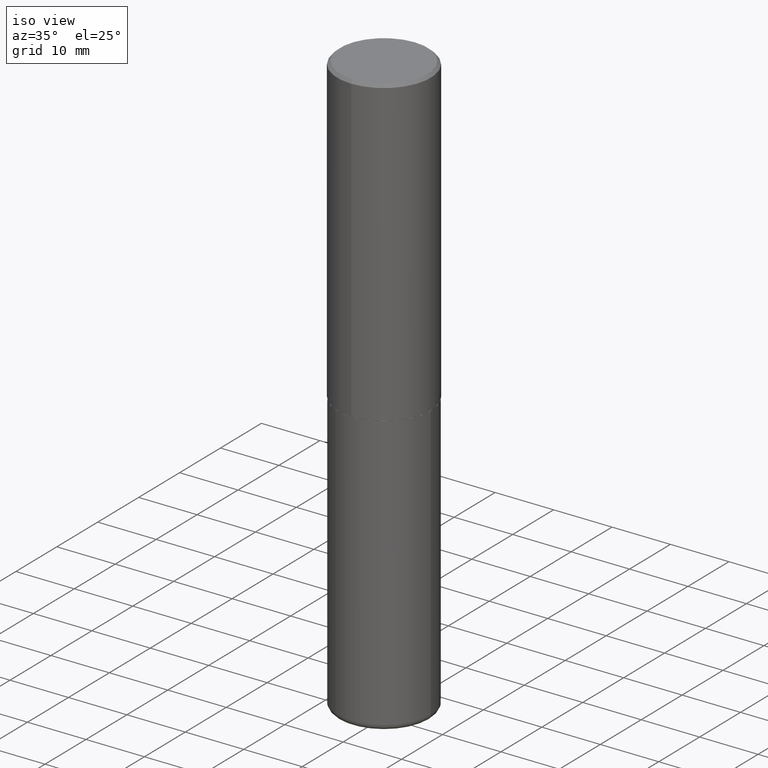
[diagram: clean part render]
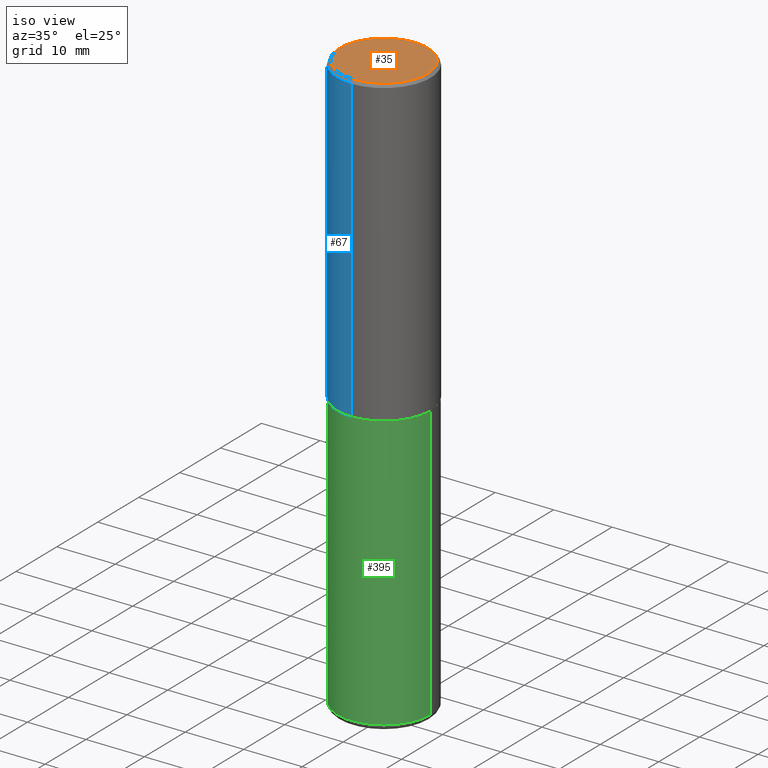
[diagram: same view with three faces highlighted in distinct colors, each labeled with its STEP entity id]
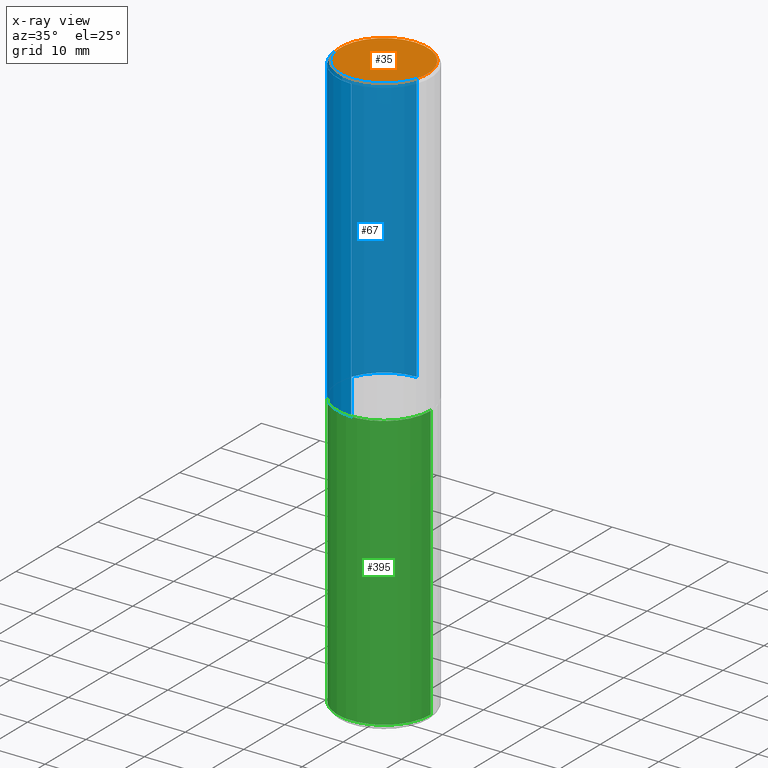
[diagram: x-ray of the same camera — body ghosted, the three highlighted faces saturated]
A machine part, iso view with three faces highlighted in distinct colors.
The next image is the same camera in x-ray (body ghosted, the three faces saturated) — at least one of them is partly hidden behind the body in this view.
Their STEP definitions:

[orange] entity #35 — the highlighted planar face has unit normal (0, -0, -1).
#6 = CARTESIAN_POINT ( 'NONE',  ( 2.059624841783566430E-15, 0.2949500000000003230, -1.121269247573966471E-15 ) ) ;
#7 = CARTESIAN_POINT ( 'NONE',  ( 2.129454468560428545E-15, 0.2949500000000003230, -1.213358457966104521E-15 ) ) ;
#35 = ADVANCED_FACE ( 'NONE', ( #293 ), #222, .F. ) ;
#66 = DIRECTION ( 'NONE',  ( 6.982962677686265922E-15, 1.000000000000000000, -3.489337301853966019E-15 ) ) ;
#76 = AXIS2_PLACEMENT_3D ( 'NONE', #6, #126, #66 ) ;
#92 = DIRECTION ( 'NONE',  ( -2.446965979212638438E-29, 3.489337301853966019E-15, 1.000000000000000000 ) ) ;
#106 = VERTEX_POINT ( 'NONE', #338 ) ;
#113 = CARTESIAN_POINT ( 'NONE',  ( 4.506783297642337076E-45, -6.426606338391306016E-31, -1.841784207842761497E-16 ) ) ;
#115 = AXIS2_PLACEMENT_3D ( 'NONE', #113, #358, #288 ) ;
#118 = ORIENTED_EDGE ( 'NONE', *, *, #171, .T. ) ;
#126 = DIRECTION ( 'NONE',  ( 2.446965979212638158E-29, -3.489337301853966019E-15, -1.000000000000000000 ) ) ;
#129 = AXIS2_PLACEMENT_3D ( 'NONE', #382, #92, #344 ) ;
#146 = ORIENTED_EDGE ( 'NONE', *, *, #366, .T. ) ;
#171 = EDGE_CURVE ( 'NONE', #106, #325, #193, .T. ) ;
#193 = CIRCLE ( 'NONE', #129, 0.2949500000000003230 ) ;
#198 = CIRCLE ( 'NONE', #115, 0.2949500000000003230 ) ;
#222 = PLANE ( 'NONE',  #76 ) ;
#283 = EDGE_LOOP ( 'NONE', ( #146, #118 ) ) ;
#288 = DIRECTION ( 'NONE',  ( -6.982962677686265922E-15, -1.000000000000000000, 3.489337301853966019E-15 ) ) ;
#293 = FACE_OUTER_BOUND ( 'NONE', #283, .T. ) ;
#325 = VERTEX_POINT ( 'NONE', #7 ) ;
#338 = CARTESIAN_POINT ( 'NONE',  ( -2.092108864420429609E-15, -0.2949500000000003230, 8.450016163975523199E-16 ) ) ;
#344 = DIRECTION ( 'NONE',  ( -6.982962677686265922E-15, -1.000000000000000000, 3.489337301853966019E-15 ) ) ;
#358 = DIRECTION ( 'NONE',  ( -2.446965979212638438E-29, 3.489337301853966019E-15, 1.000000000000000000 ) ) ;
#366 = EDGE_CURVE ( 'NONE', #325, #106, #198, .T. ) ;
#382 = CARTESIAN_POINT ( 'NONE',  ( 4.506783297642337076E-45, -6.426606338391306016E-31, -1.841784207842761497E-16 ) ) ;

[blue] entity #67 — the highlighted cylindrical surface (partial cylindrical patch) has radius 7.9997 mm, axis along (-0, 0, 1).
#10 = CIRCLE ( 'NONE', #346, 0.3149500000000001743 ) ;
#16 = VECTOR ( 'NONE', #164, 39.37007874015748143 ) ;
#17 = VERTEX_POINT ( 'NONE', #262 ) ;
#26 = EDGE_CURVE ( 'NONE', #365, #413, #100, .T. ) ;
#64 = AXIS2_PLACEMENT_3D ( 'NONE', #134, #302, #350 ) ;
#67 = ADVANCED_FACE ( 'NONE', ( #231 ), #377, .T. ) ;
#82 = CARTESIAN_POINT ( 'NONE',  ( -2.199284095337291449E-15, -0.3149500000000002853, 1.098966783218907654E-15 ) ) ;
#100 = LINE ( 'NONE', #190, #16 ) ;
#105 = ORIENTED_EDGE ( 'NONE', *, *, #352, .T. ) ;
#109 = CARTESIAN_POINT ( 'NONE',  ( 2.199284095337290660E-15, 0.3149500000000000632, -0.02000000000000116615 ) ) ;
#134 = CARTESIAN_POINT ( 'NONE',  ( 5.006981786664901703E-29, -7.139881987053586380E-15, -2.046200000000000241 ) ) ;
#147 = EDGE_LOOP ( 'NONE', ( #374, #188, #105, #357 ) ) ;
#164 = DIRECTION ( 'NONE',  ( -2.446965979212638158E-29, 3.489337301853966019E-15, 1.000000000000000000 ) ) ;
#188 = ORIENTED_EDGE ( 'NONE', *, *, #384, .T. ) ;
#190 = CARTESIAN_POINT ( 'NONE',  ( 2.237854346276437168E-15, 0.3149500000000002853, -1.098966783218907654E-15 ) ) ;
#192 = DIRECTION ( 'NONE',  ( -2.446965979212638438E-29, 3.489337301853966019E-15, 1.000000000000000000 ) ) ;
#203 = DIRECTION ( 'NONE',  ( -2.446965979212638158E-29, 3.489337301853966019E-15, 1.000000000000000000 ) ) ;
#204 = VERTEX_POINT ( 'NONE', #417 ) ;
#218 = DIRECTION ( 'NONE',  ( -6.982962677686264344E-15, -1.000000000000000000, 3.483117034309589160E-15 ) ) ;
#231 = FACE_OUTER_BOUND ( 'NONE', #147, .T. ) ;
#259 = VECTOR ( 'NONE', #203, 39.37007874015748143 ) ;
#262 = CARTESIAN_POINT ( 'NONE',  ( -2.199284095337241750E-15, -0.3149500000000075017, -2.046199999999998909 ) ) ;
#271 = AXIS2_PLACEMENT_3D ( 'NONE', #349, #279, #341 ) ;
#275 = CARTESIAN_POINT ( 'NONE',  ( 2.237854346276462412E-15, 0.3149499999999931799, -2.046200000000001129 ) ) ;
#279 = DIRECTION ( 'NONE',  ( -2.446965979212638438E-29, 3.489337301853966019E-15, 1.000000000000000000 ) ) ;
#302 = DIRECTION ( 'NONE',  ( -2.446965979212638438E-29, 3.489337301853966019E-15, 1.000000000000000000 ) ) ;
#303 = EDGE_CURVE ( 'NONE', #413, #204, #10, .T. ) ;
#341 = DIRECTION ( 'NONE',  ( -6.982962677686265922E-15, -1.000000000000000000, 3.489337301853966019E-15 ) ) ;
#346 = AXIS2_PLACEMENT_3D ( 'NONE', #361, #192, #218 ) ;
#349 = CARTESIAN_POINT ( 'NONE',  ( 0.000000000000000000, 0.000000000000000000, 0.000000000000000000 ) ) ;
#350 = DIRECTION ( 'NONE',  ( -6.982962677686265922E-15, -1.000000000000000000, 3.469564049740289220E-15 ) ) ;
#352 = EDGE_CURVE ( 'NONE', #17, #204, #372, .T. ) ;
#357 = ORIENTED_EDGE ( 'NONE', *, *, #303, .F. ) ;
#361 = CARTESIAN_POINT ( 'NONE',  ( 4.893931958425293692E-31, -6.978674603707955407E-17, -0.02000000000000006981 ) ) ;
#365 = VERTEX_POINT ( 'NONE', #275 ) ;
#372 = LINE ( 'NONE', #82, #259 ) ;
#374 = ORIENTED_EDGE ( 'NONE', *, *, #26, .F. ) ;
#377 = CYLINDRICAL_SURFACE ( 'NONE', #271, 0.3149500000000002853 ) ;
#384 = EDGE_CURVE ( 'NONE', #365, #17, #394, .T. ) ;
#394 = CIRCLE ( 'NONE', #64, 0.3149500000000003408 ) ;
#413 = VERTEX_POINT ( 'NONE', #109 ) ;
#417 = CARTESIAN_POINT ( 'NONE',  ( -2.160713844398144151E-15, -0.3149500000000002298, -0.01999999999999896999 ) ) ;

[green] entity #395 — the highlighted cylindrical surface (partial cylindrical patch) has radius 7.9997 mm, axis along (-0, 0, 1).
#24 = ORIENTED_EDGE ( 'NONE', *, *, #335, .T. ) ;
#42 = CARTESIAN_POINT ( 'NONE',  ( 5.006363740022212801E-29, -7.147760596879689780E-15, -2.047200000000000575 ) ) ;
#56 = DIRECTION ( 'NONE',  ( 1.000000000000000000, -6.982962677686266711E-15, 4.876176775795936353E-29 ) ) ;
#65 = AXIS2_PLACEMENT_3D ( 'NONE', #397, #242, #56 ) ;
#69 = DIRECTION ( 'NONE',  ( 1.000000000000000000, -6.982962677686264344E-15, 0.000000000000000000 ) ) ;
#73 = CARTESIAN_POINT ( 'NONE',  ( 0.3149500000000000077, -1.580768176161233565E-14, -3.897600000000000176 ) ) ;
#80 = VERTEX_POINT ( 'NONE', #153 ) ;
#104 = ORIENTED_EDGE ( 'NONE', *, *, #281, .F. ) ;
#135 = CYLINDRICAL_SURFACE ( 'NONE', #65, 0.3149500000000000077 ) ;
#140 = CARTESIAN_POINT ( 'NONE',  ( 9.531459218987189074E-29, -1.360839766627504420E-14, -3.897600000000000176 ) ) ;
#143 = AXIS2_PLACEMENT_3D ( 'NONE', #140, #226, #69 ) ;
#153 = CARTESIAN_POINT ( 'NONE',  ( 0.3149500000000000077, -9.347044692216979650E-15, -2.047200000000000575 ) ) ;
#159 = CARTESIAN_POINT ( 'NONE',  ( -0.3149500000000000077, -8.140224785300930216E-15, -2.047200000000000575 ) ) ;
#166 = LINE ( 'NONE', #284, #355 ) ;
#181 = CIRCLE ( 'NONE', #234, 0.3149500000000000077 ) ;
#182 = CARTESIAN_POINT ( 'NONE',  ( 0.3149500000000000077, -2.199284095337289871E-15, 1.535751875536930130E-29 ) ) ;
#206 = FACE_OUTER_BOUND ( 'NONE', #244, .T. ) ;
#226 = DIRECTION ( 'NONE',  ( -2.445468806185136597E-29, 3.491481338843145583E-15, 1.000000000000000000 ) ) ;
#233 = DIRECTION ( 'NONE',  ( 1.000000000000000000, -6.982962677686266711E-15, 0.000000000000000000 ) ) ;
#234 = AXIS2_PLACEMENT_3D ( 'NONE', #42, #400, #233 ) ;
#241 = VERTEX_POINT ( 'NONE', #73 ) ;
#242 = DIRECTION ( 'NONE',  ( -2.445468806185136597E-29, 3.491481338843145583E-15, 1.000000000000000000 ) ) ;
#244 = EDGE_LOOP ( 'NONE', ( #268, #416, #24, #104 ) ) ;
#245 = VECTOR ( 'NONE', #310, 39.37007874015748143 ) ;
#246 = EDGE_CURVE ( 'NONE', #297, #241, #362, .T. ) ;
#248 = LINE ( 'NONE', #182, #245 ) ;
#268 = ORIENTED_EDGE ( 'NONE', *, *, #402, .F. ) ;
#281 = EDGE_CURVE ( 'NONE', #301, #80, #181, .T. ) ;
#284 = CARTESIAN_POINT ( 'NONE',  ( -0.3149500000000000077, 2.237854346276435590E-15, -1.549218606675782676E-29 ) ) ;
#297 = VERTEX_POINT ( 'NONE', #315 ) ;
#301 = VERTEX_POINT ( 'NONE', #159 ) ;
#310 = DIRECTION ( 'NONE',  ( -2.445468806185136877E-29, 3.491481338843145188E-15, 1.000000000000000000 ) ) ;
#315 = CARTESIAN_POINT ( 'NONE',  ( -0.3149500000000000077, -1.137054331999860664E-14, -3.897600000000000176 ) ) ;
#335 = EDGE_CURVE ( 'NONE', #241, #80, #248, .T. ) ;
#355 = VECTOR ( 'NONE', #370, 39.37007874015748143 ) ;
#362 = CIRCLE ( 'NONE', #143, 0.3149499999999999522 ) ;
#370 = DIRECTION ( 'NONE',  ( -2.445468806185136877E-29, 3.491481338843145188E-15, 1.000000000000000000 ) ) ;
#395 = ADVANCED_FACE ( 'NONE', ( #206 ), #135, .T. ) ;
#397 = CARTESIAN_POINT ( 'NONE',  ( 0.000000000000000000, 0.000000000000000000, 0.000000000000000000 ) ) ;
#400 = DIRECTION ( 'NONE',  ( -2.445468806185136597E-29, 3.491481338843145583E-15, 1.000000000000000000 ) ) ;
#402 = EDGE_CURVE ( 'NONE', #297, #301, #166, .T. ) ;
#416 = ORIENTED_EDGE ( 'NONE', *, *, #246, .T. ) ;